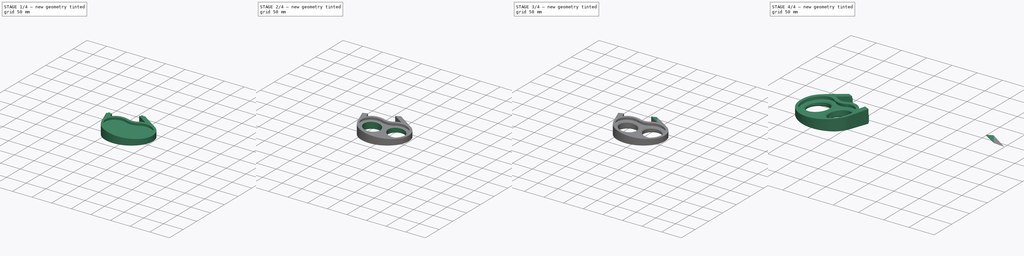
[diagram: build sequence overview — one tinted view per stage of 4, left to right]
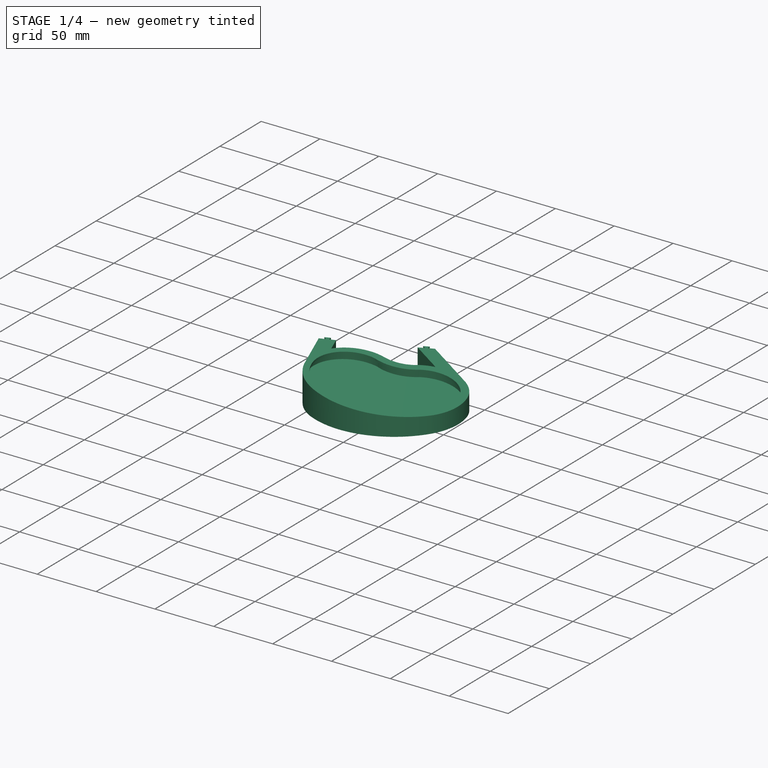
[diagram: stage 1 of 4 — iso view after this stage's code; geometry added in this stage tinted green]
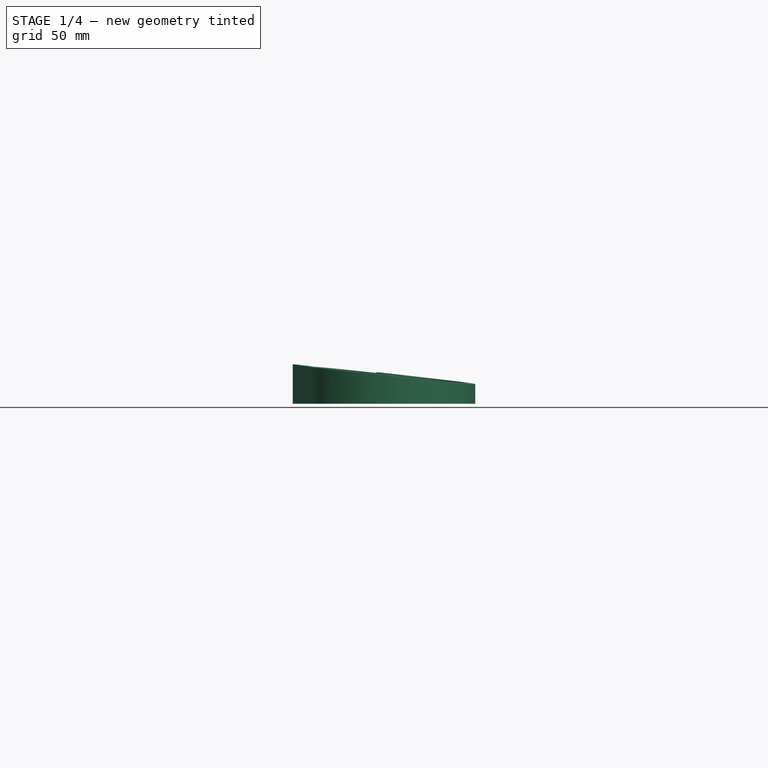
[diagram: stage 1 of 4 — front view after this stage's code; geometry added in this stage tinted green]
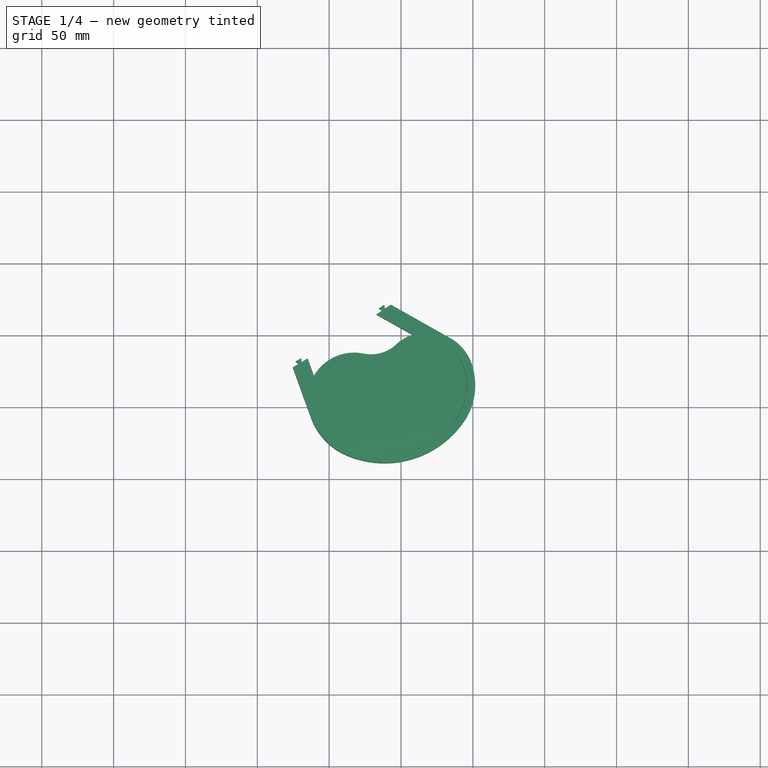
[diagram: stage 1 of 4 — top view after this stage's code; geometry added in this stage tinted green]
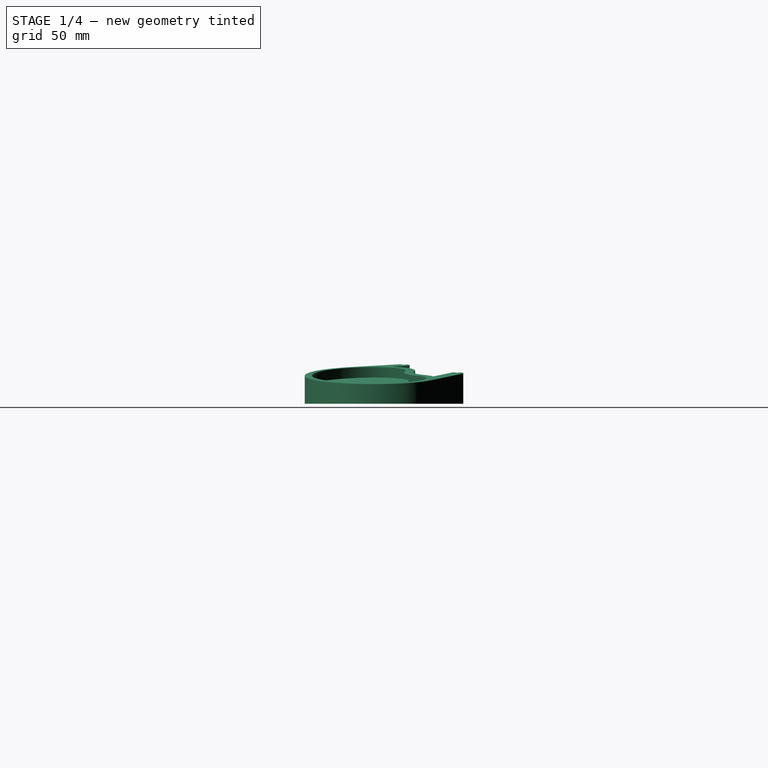
[diagram: stage 1 of 4 — right view after this stage's code; geometry added in this stage tinted green]
FCSTD DOCUMENT  (FreeCAD 1.0R39285 (Git))
Label: cinque-1.0-wrist-rest
License: All rights reserved
LicenseURL: https://en.wikipedia.org/wiki/All_rights_reserved
objects: Sketcher::SketchObject×7, PartDesign::Point×5, PartDesign::Pocket×4, Part::FeaturePython×3, PartDesign::Plane×2, PartDesign::Chamfer×2, PartDesign::Pad×1, PartDesign::Body×1, App::DocumentObjectGroup×1, Part::Fillet×1, Part::Mirroring×1
note: 48 computed .brp shape members not serialized (recipe doc carries the construction recipe); baked Part::Feature solids carry a one-line shape summary decoded from their .brp

FEATURE [Sketcher::SketchObject] Sketch021
  ArcFitTolerance = 1e-06
  AttachmentOffset = pos=(1.3,43.29,0) rot=(0,0,1;0.191986rad)
  AttachmentSupport = -> [XY_Plane]
  FullyConstrained = true
  MakeInternals = false
  MapMode = 5
  Placement = pos=(1.3,43.29,0) rot=(0,0,1;0.191986rad)
  sketch-geometry (35):
    g0: LineSegment StartX=16.2394 StartY=15.4165 StartZ=0 EndX=17.8054 EndY=9.6763 EndZ=0
    g1: LineSegment StartX=17.8054 StartY=9.6763 StartZ=0 EndX=19.8883 EndY=11.5402 EndZ=0
    g2: LineSegment StartX=19.8883 StartY=11.5402 StartZ=0 EndX=21.2306 EndY=6.62006 EndZ=0
    g3: LineSegment StartX=21.2306 StartY=6.62006 StartZ=0 EndX=18.4898 EndY=7.16798 EndZ=0
    g4: LineSegment StartX=18.4898 StartY=7.16798 StartZ=0 EndX=32.8352 EndY=-45.4133 EndZ=0
    g5: LineSegment StartX=32.8352 StartY=-45.4133 StartZ=0 EndX=34.9181 EndY=-43.5494 EndZ=0
    g6: LineSegment StartX=34.9181 StartY=-43.5494 StartZ=0 EndX=36.2604 EndY=-48.4695 EndZ=0
    g7: LineSegment StartX=36.2604 StartY=-48.4695 StartZ=0 EndX=33.5196 EndY=-47.9216 EndZ=0
    g8: LineSegment StartX=33.5196 StartY=-47.9216 StartZ=0 EndX=35.0856 EndY=-53.6618 EndZ=0
    g9: LineSegment StartX=35.0856 StartY=-53.6618 StartZ=0 EndX=29.0135 EndY=-61.5422 EndZ=0
    g10: LineSegment StartX=29.0135 StartY=-61.5422 StartZ=0 EndX=32.9844 EndY=-72.3026 EndZ=0
    g11: LineSegment StartX=32.9844 StartY=-72.3026 StartZ=0 EndX=34.8971 EndY=-70.2644 EndZ=0
    g12: LineSegment StartX=34.8971 StartY=-70.2644 StartZ=0 EndX=36.6627 EndY=-75.049 EndZ=0
    g13: LineSegment StartX=36.6627 StartY=-75.049 StartZ=0 EndX=33.8846 EndY=-74.7418 EndZ=0
    g14: LineSegment StartX=33.8846 StartY=-74.7418 StartZ=0 EndX=38.0217 EndY=-85.9528 EndZ=0
    g15: LineSegment StartX=38.0217 StartY=-85.9528 StartZ=0 EndX=63.9413 EndY=-76.6823 EndZ=0
    g16: LineSegment StartX=63.9413 StartY=-76.6823 StartZ=0 EndX=61.9224 EndY=-74.7493 EndZ=0
    g17: LineSegment StartX=61.9224 StartY=-74.7493 StartZ=0 EndX=66.7245 EndY=-73.0317 EndZ=0
    g18: LineSegment StartX=66.7245 StartY=-73.0317 StartZ=0 EndX=66.3895 EndY=-75.8066 EndZ=0
    g19: LineSegment StartX=66.3895 StartY=-75.8066 StartZ=0 EndX=92.3091 EndY=-66.5361 EndZ=0
    g20: LineSegment StartX=92.3091 StartY=-66.5361 StartZ=0 EndX=128.014 EndY=-51.2943 EndZ=0
    g21: LineSegment StartX=128.014 StartY=-51.2943 StartZ=0 EndX=125.883 EndY=-49.4858 EndZ=0
    g22: LineSegment StartX=125.883 StartY=-49.4858 StartZ=0 EndX=130.574 EndY=-47.4836 EndZ=0
    g23: LineSegment StartX=130.574 StartY=-47.4836 StartZ=0 EndX=130.406 EndY=-50.2736 EndZ=0
    g24: LineSegment StartX=130.406 StartY=-50.2736 StartZ=0 EndX=166.111 EndY=-35.0318 EndZ=0
    g25: LineSegment StartX=167.763 StartY=-32.1537 StartZ=0 EndX=162.807 EndY=21.9215 EndZ=0
    g26: LineSegment StartX=161.439 StartY=24.121 StartZ=0 EndX=141.847 EndY=35.9891 EndZ=0
    g27: LineSegment StartX=141.847 StartY=35.9891 StartZ=0 EndX=115.751 EndY=43.3614 EndZ=0
    g28: LineSegment StartX=115.751 StartY=43.3614 StartZ=0 EndX=95.7425 EndY=47.1481 EndZ=0
    g29: LineSegment StartX=95.7425 StartY=47.1481 StartZ=0 EndX=76.8905 EndY=43.9433 EndZ=0
    g30: LineSegment StartX=76.8905 StartY=43.9433 StartZ=0 EndX=36.0729 EndY=24.9987 EndZ=0
    g31: LineSegment StartX=36.0729 StartY=24.9987 StartZ=0 EndX=31.3759 EndY=19.3864 EndZ=0
    g32: LineSegment StartX=31.3759 StartY=19.3864 StartZ=0 EndX=16.2394 EndY=15.4165 EndZ=0
    g33: ArcOfCircle CenterX=159.666 CenterY=21.4937 CenterZ=0 NormalX=0 NormalY=0 NormalZ=1 AngleXU=0 Radius=3.17 StartAngle=0.135278 EndAngle=0.976936
    g34: ArcOfCircle CenterX=164.363 CenterY=-32.1153 CenterZ=0 NormalX=0 NormalY=0 NormalZ=1 AngleXU=0 Radius=3.4 StartAngle=5.25178 EndAngle=6.27191
  constraints (72):
    c: Coincident(g-38,g0)
    c: Coincident(g0,g-4)
    c: Coincident(g0,g1)
    c: Coincident(g1,g-5)
    c: Coincident(g1,g2)
    c: Coincident(g2,g-6)
    c: Coincident(g2,g3)
    c: Coincident(g3,g-7)
    c: Coincident(g3,g4)
    c: Coincident(g4,g-8)
    c: Coincident(g4,g5)
    c: Coincident(g5,g-9)
    c: Coincident(g5,g6)
    c: Coincident(g6,g-10)
    c: Coincident(g6,g7)
    c: Coincident(g7,g-11)
    c: Coincident(g7,g8)
    c: Coincident(g8,g-12)
    c: Coincident(g8,g9)
    c: Coincident(g9,g-13)
    c: Coincident(g9,g10)
    c: Coincident(g10,g-13)
    c: Coincident(g10,g11)
    c: Coincident(g11,g-14)
    c: Coincident(g11,g12)
    c: Coincident(g12,g-16)
    c: Coincident(g12,g13)
    c: Coincident(g13,g-17)
    c: Coincident(g13,g14)
    c: Coincident(g14,g-18)
    c: Coincident(g14,g15)
    c: Coincident(g15,g-19)
    c: Coincident(g15,g16)
    c: Coincident(g16,g-20)
    c: Coincident(g16,g17)
    c: Coincident(g17,g-21)
    c: Coincident(g17,g18)
    c: Coincident(g18,g-22)
    c: Coincident(g18,g19)
    c: Coincident(g19,g-23)
    c: Coincident(g19,g20)
    c: Coincident(g20,g-24)
    c: Coincident(g20,g21)
    c: Coincident(g21,g-25)
    c: Coincident(g21,g22)
    c: Coincident(g22,g-26)
    c: Coincident(g22,g23)
    c: Coincident(g23,g-27)
    c: Coincident(g23,g24)
    c: Coincident(g24,g-28)
    c: Coincident(g-29,g25)
    c: Coincident(g25,g-31)
    c: Coincident(g-32,g26)
    c: Coincident(g26,g-33)
    c: Coincident(g26,g27)
    c: Coincident(g27,g-34)
    c: Coincident(g27,g28)
    c: Coincident(g28,g-35)
    c: Coincident(g28,g29)
    c: Coincident(g29,g-36)
    c: Coincident(g29,g30)
    c: Coincident(g30,g-37)
    c: Coincident(g30,g31)
    c: Coincident(g31,g-38)
    c: Coincident(g31,g32)
    c: Coincident(g32,g0)
    c: Coincident(g33,g-31)
    c: Coincident(g33,g26)
    c: Coincident(g34,g-28)
    c: Coincident(g34,g25)
    c: Distance(g25,g34) = 3.32
    c: Distance(g26,g33) = 2.59
FEATURE [Sketcher::SketchObject] Sketch026
  ArcFitTolerance = 1e-06
  AttachmentSupport = -> [XY_Plane]
  ExternalGeometry = -> [Sketch021]
  FullyConstrained = true
  MakeInternals = false
  MapMode = 5
  sketch-geometry (21):
    g0: ArcOfCircle CenterX=117.459 CenterY=-44.6002 CenterZ=0 NormalX=0 NormalY=0 NormalZ=1 AngleXU=0 Radius=32.5 StartAngle=1.37342 EndAngle=2.6105
    g1: ArcOfCircle CenterX=130.068 CenterY=-41.7002 CenterZ=0 NormalX=0 NormalY=0 NormalZ=1 AngleXU=0 Radius=45.5 StartAngle=3.46173 EndAngle=4.24917
    g2: ArcOfCircle CenterX=138.599 CenterY=-21.9402 CenterZ=0 NormalX=0 NormalY=0 NormalZ=1 AngleXU=0 Radius=67 StartAngle=4.26705 EndAngle=5.72294
    g3: ArcOfCircle CenterX=156.152 CenterY=-34.4502 CenterZ=0 NormalX=0 NormalY=0 NormalZ=1 AngleXU=0 Radius=45.5 StartAngle=5.75084 EndAngle=6.57028
    g4: ArcOfCircle CenterX=168.486 CenterY=-30.3015 CenterZ=0 NormalX=0 NormalY=0 NormalZ=1 AngleXU=0 Radius=32.5 StartAngle=0.27213 EndAngle=1.05838
    g5: ArcOfCircle CenterX=129.05 CenterY=12.7398 CenterZ=0 NormalX=0 NormalY=0 NormalZ=1 AngleXU=0 Radius=26 StartAngle=4.51032 EndAngle=5.52701
    g6: LineSegment StartX=74.6834 StartY=-22.3392 StartZ=0 EndX=78.9835 EndY=-19.788 EndZ=0
    g7: LineSegment StartX=78.9835 StartY=-19.788 StartZ=0 EndX=76.6328 EndY=-18.2757 EndZ=0
    g8: LineSegment StartX=76.6328 StartY=-18.2757 StartZ=0 EndX=80.6011 EndY=-15.9213 EndZ=0
    g9: LineSegment StartX=80.6011 StartY=-15.9213 StartZ=0 EndX=80.7975 EndY=-18.7117 EndZ=0
    g10: LineSegment StartX=80.7975 StartY=-18.7117 StartZ=0 EndX=85.0976 EndY=-16.1605 EndZ=0
    g11: LineSegment StartX=132.895 StartY=14.5719 StartZ=0 EndX=137.035 EndY=17.3763 EndZ=0
    g12: LineSegment StartX=137.035 StartY=17.3763 StartZ=0 EndX=134.598 EndY=18.745 EndZ=0
    g13: LineSegment StartX=134.598 StartY=18.745 StartZ=0 EndX=138.418 EndY=21.3332 EndZ=0
    g14: LineSegment StartX=138.418 StartY=21.3332 StartZ=0 EndX=138.786 EndY=18.5624 EndZ=0
    g15: LineSegment StartX=138.786 StartY=18.5624 StartZ=0 EndX=142.925 EndY=21.3667 EndZ=0
    g16: LineSegment StartX=142.925 StartY=21.3667 StartZ=0 EndX=184.42 EndY=-1.97573 EndZ=0
    g17: LineSegment StartX=132.895 StartY=14.5719 StartZ=0 EndX=157.987 EndY=0.45613 EndZ=0
    g18: LineSegment StartX=74.6834 StartY=-22.3392 StartZ=0 EndX=86.8801 EndY=-56.0188 EndZ=0
    g19: LineSegment StartX=85.0976 StartY=-16.1605 StartZ=0 EndX=89.4358 EndY=-28.1397 EndZ=0
    g20: ArcOfCircle CenterX=168.486 CenterY=-30.3015 CenterZ=0 NormalX=0 NormalY=0 NormalZ=1 AngleXU=0 Radius=32.5 StartAngle=1.89973 EndAngle=2.25419
  constraints (69):
    c: Coincident(g0,g5)
    c: Coincident(g3,g2)
    c: Coincident(g4,g3)
    c: Coincident(g20,g5)
    c: Radius(g0) = 32.5
    c: Radius(g4) = 32.5
    c: Radius(g5) = 26
    c: Radius(g3) = 45.5
    c: Radius(g1) = 45.5
    c: Radius(g2) = 67
    c: Coincident(g6,g7)
    c: Coincident(g7,g8)
    c: Coincident(g8,g9)
    c: Coincident(g9,g10)
    c: Distance(g6,g6) = 5
    c: Distance(g10,g10) = 5
    c: Coincident(g11,g12)
    c: Coincident(g12,g13)
    c: Coincident(g13,g14)
    c: Coincident(g14,g15)
    c: Distance(g15,g15) = 5
    c: Distance(g11,g11) = 5
    c: Coincident(g15,g16)
    c: Coincident(g17,g11)
    c: PointOnObject(g17,g20)
    c: Coincident(g18,g6)
    c: Coincident(g19,g10)
    c: Parallel(g18,g19)
    c: Coincident(g0,g19)
    c: Equal(g4,g20)
    c: Tangent(g4,g16) = 1.5708
    c: PointOnObject(g20,g17)
    c: Coincident(g4,g20)
    c: Coincident(g1,g18)
    c: Distance(g15,g-12) = 0.15
    c: Distance(g-11,g14) = 0.15
    c: Distance(g13,g-10) = 0.15
    c: Distance(g-9,g12) = 0.15
    c: Distance(g11,g-8) = 0.15
    c: Distance(g-7,g10) = 0.15
    c: Distance(g-3,g9) = 0.15
    c: Distance(g-5,g8) = 0.15
    c: Distance(g7,g-4) = 0.15
    c: Distance(g6,g-6) = 0.15
    c: DistanceX(g-8,g2) = 33.99
    c: DistanceY(g2,g-8) = 17.53
    c: Distance(g0,g0) = 37.69
    c: Distance(g0,g5) = 25.31
    c: Distance(g17,g5) = 11.46
    c: Distance(g17,g17) = 28.79
    c: Distance(g16,g16) = 47.61
    c: Distance(g18,g18) = 35.82
    c: Distance(g4,g3) = 24.9
    c: Distance(g2,g3) = 36.25
    c: DistanceY(g2,g5) = 34.68
    c: DistanceY(g3,g2) = 12.51
    c: DistanceY(g1,g2) = 19.76
    c: DistanceY(g0,g2) = 22.66
    c: Parallel(g12,g-9)
    c: Parallel(g14,g-11)
    c: Parallel(g13,g-10)
    c: Parallel(g-8,g11)
    c: Parallel(g-12,g15)
    c: Parallel(g-6,g6)
    c: Parallel(g10,g-7)
    c: Parallel(g-5,g8)
    c: Parallel(g7,g-4)
    c: Coincident(g2,g1)
    c: Distance(g1,g1) = 34.91
FEATURE [PartDesign::Point] DatumPoint003
  AttacherType = Attacher::AttachEnginePoint
  AttachmentOffset = pos=(0,0,27.5) rot=(0,0,1;0rad)
  AttachmentSupport = -> [Sketch026]
  MapMode = 37
  Placement = pos=(74.6834,-22.3392,27.5) rot=(0,0,1;0rad)
FEATURE [PartDesign::Point] DatumPoint004
  AttacherType = Attacher::AttachEnginePoint
  AttachmentOffset = pos=(0,0,26.5) rot=(0,0,1;0rad)
  AttachmentSupport = -> [Sketch026]
  MapMode = 37
  Placement = pos=(85.0976,-16.1605,26.5) rot=(0,0,1;0rad)
FEATURE [PartDesign::Point] DatumPoint005
  AttacherType = Attacher::AttachEnginePoint
  AttachmentOffset = pos=(0,0,14) rot=(0,0,1;0rad)
  AttachmentSupport = -> [Sketch026]
  MapMode = 37
  Placement = pos=(195.356,-57.5439,14) rot=(0,0,1;0rad)
FEATURE [PartDesign::Plane] DatumPlane
  AttachmentSupport = -> [DatumPoint003,DatumPoint004,DatumPoint005]
  Length = 151.209
  MapMode = 13
  Placement = pos=(118.379,-32.0145,22.6667) rot=(-0.645357,0.762773,0.041124;3.21115rad)
  ResizeMode = 0
  Width = 268.6
FEATURE [PartDesign::Pad] Pad
  Direction = (0,0,1)
  Length = 30
  Length2 = 10
  Profile = -> Sketch026
  ReferenceAxis = -> Sketch026 [N_Axis]
  Refine = true
  Suppressed = false
  Type = 3
  UpToFace = -> DatumPlane
FEATURE [Sketcher::SketchObject] Sketch023
  ArcFitTolerance = 1e-06
  AttachmentOffset = pos=(141.1,-43.1,0) rot=(0,0,1;0.261799rad)
  AttachmentSupport = -> [Pad]
  FullyConstrained = true
  MakeInternals = false
  MapMode = 5
  Placement = pos=(144.085,-43.4601,19.7202) rot=(0.111656,0.36384,0.924745;0.283859rad)
  sketch-geometry (9):
    g0: ArcOfCircle CenterX=27 CenterY=5.1817 CenterZ=0 NormalX=0 NormalY=0 NormalZ=1 AngleXU=0 Radius=30 StartAngle=0 EndAngle=1.9642
    g1: ArcOfCircle CenterX=-27 CenterY=5.1817 CenterZ=0 NormalX=0 NormalY=0 NormalZ=1 AngleXU=0 Radius=30 StartAngle=1.17739 EndAngle=3.14159
    g2: ArcOfCircle CenterX=13.744 CenterY=5.1817 CenterZ=0 NormalX=0 NormalY=0 NormalZ=1 AngleXU=0 Radius=43.256 StartAngle=5.45518 EndAngle=6.28319
    g3: LineSegment [constr] StartX=-62.5 StartY=5.1817 StartZ=0 EndX=62.5 EndY=5.1817 EndZ=0
    g4: ArcOfCircle CenterX=-3.1e-15 CenterY=23.39 CenterZ=0 NormalX=0 NormalY=0 NormalZ=1 AngleXU=0 Radius=66 StartAngle=4.00281 EndAngle=5.42197
    g5: GeomPoint X=43 Y=-26.68 Z=0
    g6: ArcOfCircle CenterX=-13.5001 CenterY=5.28886 CenterZ=0 NormalX=0 NormalY=0 NormalZ=1 AngleXU=0 Radius=43.5 StartAngle=3.14406 EndAngle=3.96714
    g7: ArcOfCircle CenterX=-6e-16 CenterY=58.5756 CenterZ=0 NormalX=0 NormalY=0 NormalZ=1 AngleXU=0 Radius=30 StartAngle=4.16944 EndAngle=5.25534
    g8: GeomPoint X=15.5 Y=32.89 Z=0
  constraints (26):
    c: DistanceX(g1,g-1) = 27
    c: DistanceX(g3,g3) = 125
    c: Symmetric(g3,g3,g-2)
    c: PointOnObject(g1,g3)
    c: PointOnObject(g2,g3)
    c: Coincident(g1,g6)
    c: Coincident(g0,g2)
    c: Radius(g7) = 30
    c: DistanceX(g4,g-1) = 43
    c: DistanceY(g2,g-1) = 26.68
    c: Distance(g0,g-1) = 32.89
    c: PointOnObject(g1,g3)
    c: Radius(g4) = 66
    c: Radius(g6) = 43.5
    c: Coincident(g0,g7)
    c: Coincident(g8,g0)
    c: Coincident(g5,g2)
    c: Coincident(g7,g1)
    c: Coincident(g6,g4)
    c: Coincident(g4,g2)
    c: Symmetric(g1,g0,g-2)
    c: Symmetric(g4,g2,g-2)
    c: Distance(g1,g-2) = 15.5
    c: Radius(g1) = 30
    c: Symmetric(g1,g0,g-2)
    c: PointOnObject(g0,g3)
FEATURE [Sketcher::SketchObject] Sketch
  ArcFitTolerance = 1e-06
  AttachmentSupport = -> [Pad]
  ExternalGeometry = -> [Sketch023]
  FullyConstrained = true
  MakeInternals = false
  MapMode = 5
  Placement = pos=(3.7807,-0.634916,35.4503) rot=(0.16608,0.986073,0.00883;0.107727rad)
  sketch-geometry (6):
    g0: ArcOfCircle CenterX=113.679 CenterY=-45.083 CenterZ=0 NormalX=0 NormalY=0 NormalZ=1 AngleXU=0 Radius=27 StartAngle=1.44681 EndAngle=3.38787
    g1: ArcOfCircle CenterX=125.94 CenterY=13.4797 CenterZ=0 NormalX=0 NormalY=0 NormalZ=1 AngleXU=0 Radius=32.9988 StartAngle=4.43862 EndAngle=5.50622
    g2: ArcOfCircle CenterX=165.839 CenterY=-31.1067 CenterZ=0 NormalX=0 NormalY=0 NormalZ=1 AngleXU=0 Radius=26.9831 StartAngle=0.264567 EndAngle=2.22266
    g3: ArcOfCircle CenterX=153.035 CenterY=-34.5377 CenterZ=0 NormalX=0 NormalY=0 NormalZ=1 AngleXU=0 Radius=40.239 StartAngle=5.71488 EndAngle=6.54684
    g4: ArcOfCircle CenterX=126.691 CenterY=-41.4854 CenterZ=0 NormalX=0 NormalY=0 NormalZ=1 AngleXU=0 Radius=40.4978 StartAngle=3.39569 EndAngle=4.22119
    g5: ArcOfCircle CenterX=135.046 CenterY=-20.507 CenterZ=0 NormalX=0 NormalY=0 NormalZ=1 AngleXU=0 Radius=62.9877 StartAngle=4.26133 EndAngle=5.68084
  constraints (18):
    c: Radius(g0) = 27
    c: Coincident(g0,g-3)
    c: Coincident(g1,g-4)
    c: Coincident(g1,g0)
    c: Coincident(g2,g-5)
    c: Coincident(g2,g1)
    c: Coincident(g3,g-6)
    c: Coincident(g3,g2)
    c: Coincident(g4,g-8)
    c: Coincident(g4,g0)
    c: Coincident(g5,g-7)
    c: Coincident(g5,g4)
    c: Coincident(g5,g3)
    c: Distance(g0,g1) = 33.58
    c: Distance(g1,g2) = 44.79
    c: Distance(g0,g0) = 44.56
    c: Distance(g0,g4) = 32.49
    c: Distance(g3,g2) = 32.52
FEATURE [PartDesign::Pocket] Pocket
  BaseFeature = -> Pad
  Direction = (-0.10603,0.0178062,-0.994204)
  Length = 1.6
  Length2 = 5
  Profile = -> Sketch
  ReferenceAxis = -> Sketch [N_Axis]
  Refine = true
  Suppressed = false
  Type = 0
FEATURE [Sketcher::SketchObject] Sketch027
  ArcFitTolerance = 1e-06
  AttachmentSupport = -> [Pocket]
  ExternalGeometry = -> [Sketch023]
  FullyConstrained = true
  MakeInternals = false
  MapMode = 5
  Placement = pos=(3.61106,-0.606426,33.8596) rot=(0.16608,0.986073,0.00883;0.107727rad)
  sketch-geometry (6):
    g0: ArcOfCircle CenterX=125.94 CenterY=13.4797 CenterZ=0 NormalX=0 NormalY=0 NormalZ=1 AngleXU=0 Radius=30 StartAngle=4.43124 EndAngle=5.51714
    g1: ArcOfCircle CenterX=165.839 CenterY=-31.1067 CenterZ=0 NormalX=0 NormalY=0 NormalZ=1 AngleXU=0 Radius=30 StartAngle=0.261799 EndAngle=2.226
    g2: ArcOfCircle CenterX=113.679 CenterY=-45.083 CenterZ=0 NormalX=0 NormalY=0 NormalZ=1 AngleXU=0 Radius=30 StartAngle=1.43919 EndAngle=3.40339
    g3: ArcOfCircle CenterX=126.691 CenterY=-41.4854 CenterZ=0 NormalX=0 NormalY=0 NormalZ=1 AngleXU=0 Radius=43.5 StartAngle=3.40586 EndAngle=4.22894
    g4: ArcOfCircle CenterX=153.035 CenterY=-34.5377 CenterZ=0 NormalX=0 NormalY=0 NormalZ=1 AngleXU=0 Radius=43.256 StartAngle=5.71698 EndAngle=6.54498
    g5: ArcOfCircle CenterX=135.046 CenterY=-20.507 CenterZ=0 NormalX=0 NormalY=0 NormalZ=1 AngleXU=0 Radius=66 StartAngle=4.26461 EndAngle=5.68377
  constraints (16):
    c: Coincident(g4,g1)
    c: Coincident(g1,g0)
    c: Coincident(g0,g2)
    c: Coincident(g0,g-4)
    c: Coincident(g3,g2)
    c: Coincident(g2,g-3)
    c: Coincident(g3,g5)
    c: Coincident(g3,g-7)
    c: Coincident(g5,g4)
    c: Coincident(g-6,g5)
    c: Coincident(g4,g-8)
    c: Coincident(g1,g-5)
    c: Coincident(g-7,g2)
    c: Coincident(g-8,g1)
    c: Distance(g0,g0) = 31
    c: Distance(g3,g4) = 86
FEATURE [PartDesign::Pocket] Pocket001
  BaseFeature = -> Pocket
  Direction = (-0.10603,0.0178062,-0.994204)
  Length = 6
  Length2 = 5
  Profile = -> Sketch027
  ReferenceAxis = -> Sketch027 [N_Axis]
  Refine = true
  Suppressed = false
  Type = 0
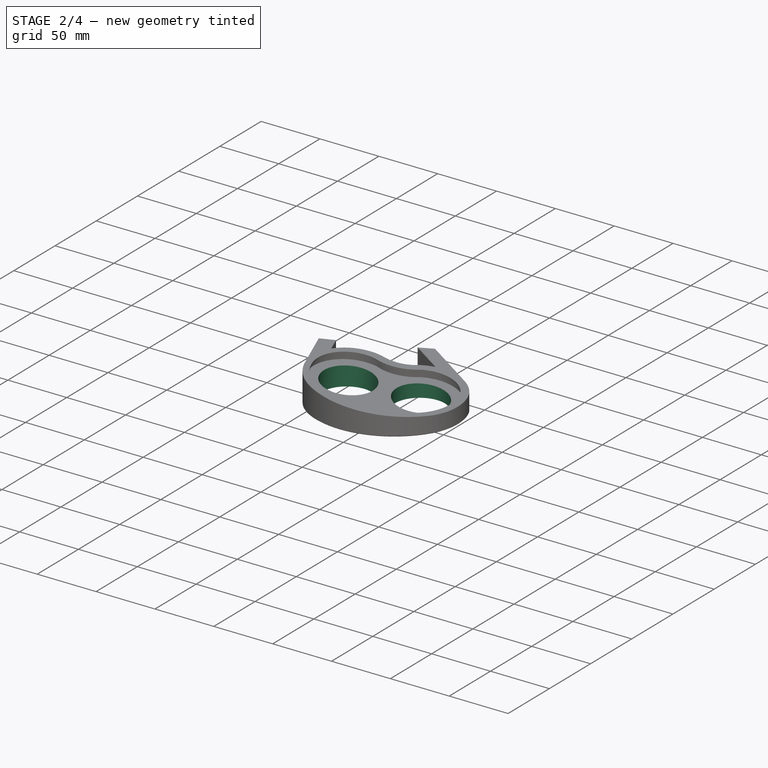
[diagram: stage 2 of 4 — iso view after this stage's code; geometry added in this stage tinted green]
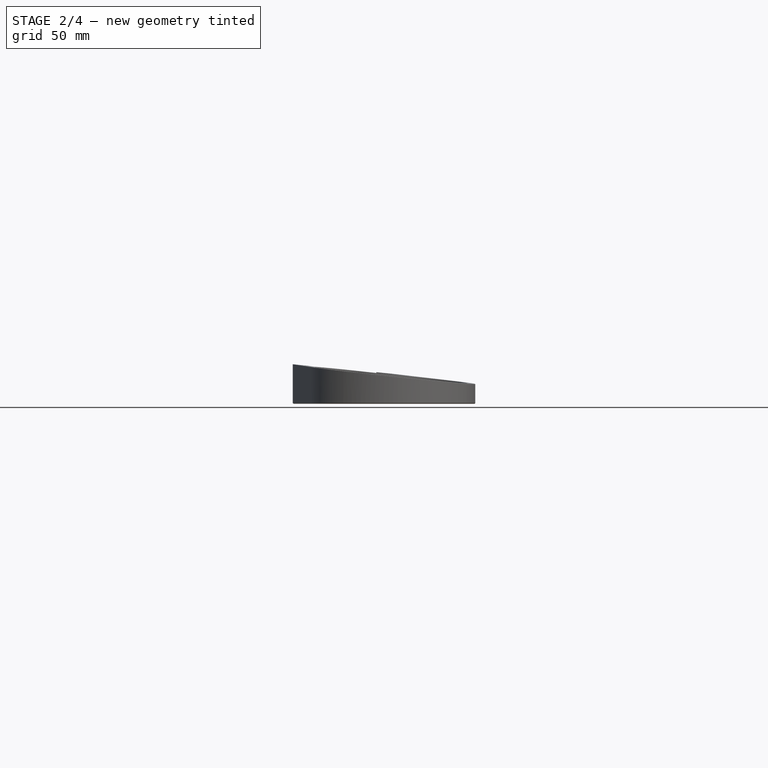
[diagram: stage 2 of 4 — front view after this stage's code; geometry added in this stage tinted green]
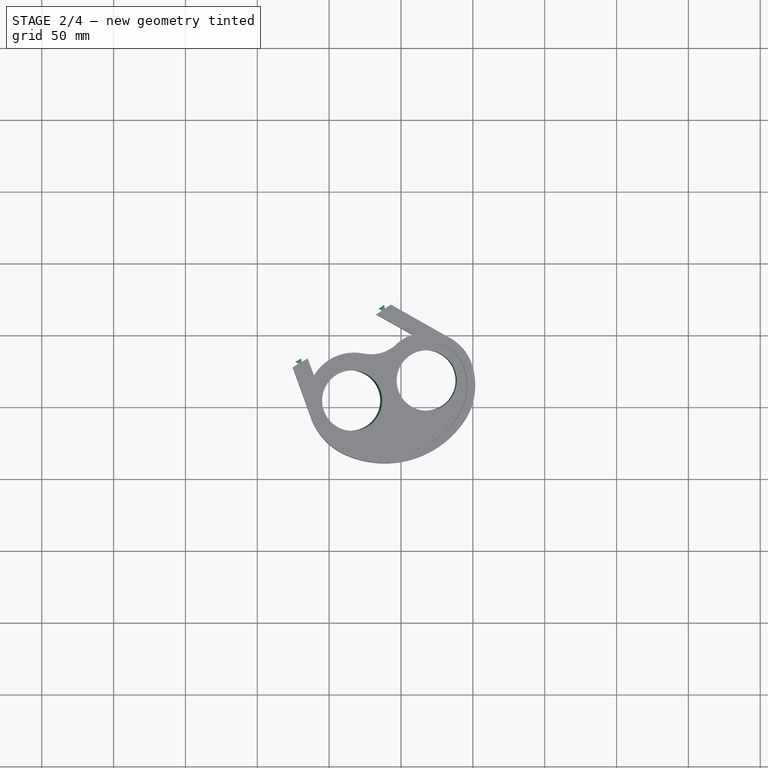
[diagram: stage 2 of 4 — top view after this stage's code; geometry added in this stage tinted green]
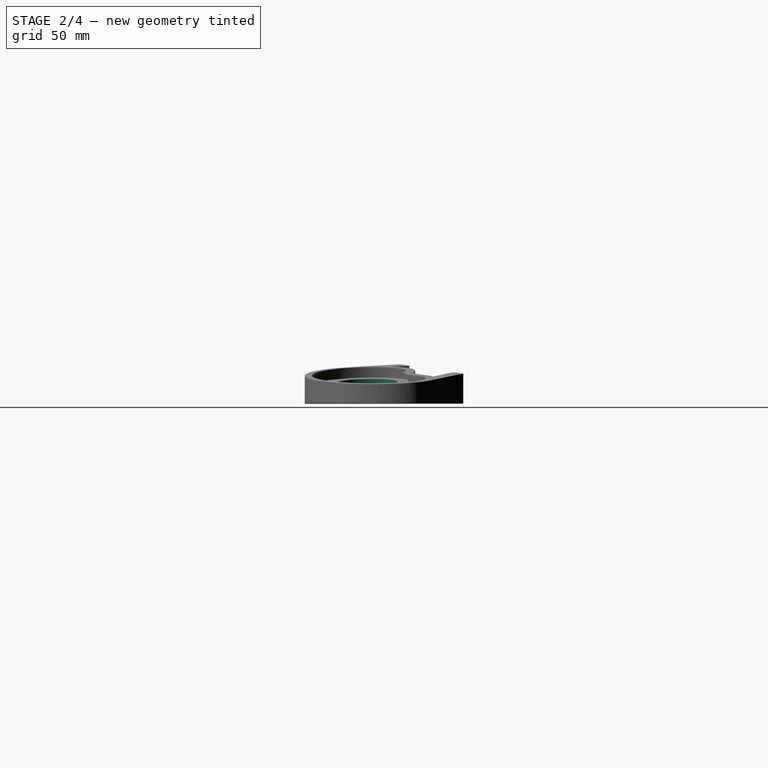
[diagram: stage 2 of 4 — right view after this stage's code; geometry added in this stage tinted green]
FEATURE [Sketcher::SketchObject] Sketch028
  ArcFitTolerance = 1e-06
  AttachmentOffset = pos=(0,0,-13.75) rot=(0,0,1;0rad)
  AttachmentSupport = -> [Pocket001]
  ExternalGeometry = -> [Pocket001]
  FullyConstrained = true
  MakeInternals = false
  MapMode = 5
  Placement = pos=(0,0,13.75) rot=(1,0,0;3.14159rad)
  sketch-geometry (8):
    g0: LineSegment StartX=137.035 StartY=-17.3763 StartZ=0 EndX=138.786 EndY=-18.5624 EndZ=0
    g1: LineSegment StartX=138.786 StartY=-18.5624 StartZ=0 EndX=138.418 EndY=-21.3332 EndZ=0
    g2: LineSegment StartX=138.418 StartY=-21.3332 StartZ=0 EndX=134.598 EndY=-18.745 EndZ=0
    g3: LineSegment StartX=134.598 StartY=-18.745 StartZ=0 EndX=137.035 EndY=-17.3763 EndZ=0
    g4: LineSegment StartX=78.9835 StartY=19.788 StartZ=0 EndX=80.7975 EndY=18.7117 EndZ=0
    g5: LineSegment StartX=80.7975 StartY=18.7117 StartZ=0 EndX=80.6011 EndY=15.9213 EndZ=0
    g6: LineSegment StartX=80.6011 StartY=15.9213 StartZ=0 EndX=76.6328 EndY=18.2757 EndZ=0
    g7: LineSegment StartX=76.6328 StartY=18.2757 StartZ=0 EndX=78.9835 EndY=19.788 EndZ=0
  constraints (16):
    c: Coincident(g-5,g0)
    c: Coincident(g0,g-6)
    c: Coincident(g0,g1)
    c: Coincident(g1,g-6)
    c: Coincident(g1,g2)
    c: Coincident(g2,g-5)
    c: Coincident(g2,g3)
    c: Coincident(g3,g0)
    c: Coincident(g-3,g4)
    c: Coincident(g4,g-4)
    c: Coincident(g4,g5)
    c: Coincident(g5,g-4)
    c: Coincident(g5,g6)
    c: Coincident(g6,g-3)
    c: Coincident(g6,g7)
    c: Coincident(g7,g4)
FEATURE [PartDesign::Pocket] Pocket002
  BaseFeature = -> Pocket001
  Direction = (0,0,1)
  Length = 5
  Length2 = 5
  Profile = -> Sketch028
  ReferenceAxis = -> Sketch028 [N_Axis]
  Refine = true
  Suppressed = false
  Type = 1
FEATURE [PartDesign::Chamfer] Chamfer
  Angle = 45
  Base = -> Pocket002 [Edge20,Edge21,Edge22,Edge23,Edge24,Edge9,Edge10,Edge11,Edge12,Edge13,Edge14,Edge15,Edge16,Edge17,Edge18,Edge19,Edge1,Edge8]
  BaseFeature = -> Pocket002
  ChamferType = 0
  FlipDirection = false
  Refine = true
  Size = 0.5
  Size2 = 1
  SupportTransform = false
  Suppressed = false
  UseAllEdges = false
FEATURE [Sketcher::SketchObject] Sketch029
  ArcFitTolerance = 1e-06
  AttachmentSupport = -> [Chamfer]
  ExternalGeometry = -> [Chamfer]
  FullyConstrained = true
  MakeInternals = false
  MapMode = 5
  Placement = pos=(2.97488,-0.499589,27.8944) rot=(0.16608,0.986073,0.00883;0.107727rad)
  sketch-geometry (2):
    g0: Circle CenterX=113.679 CenterY=-45.083 CenterZ=0 NormalX=0 NormalY=0 NormalZ=1 AngleXU=0 Radius=21
    g1: Circle CenterX=165.839 CenterY=-31.1067 CenterZ=0 NormalX=0 NormalY=0 NormalZ=1 AngleXU=0 Radius=21
  constraints (4):
    c: Diameter(g0) = 42
    c: Coincident(g0,g-3)
    c: Diameter(g1) = 42
    c: Coincident(g1,g-4)
FEATURE [PartDesign::Pocket] Pocket003
  BaseFeature = -> Chamfer
  Direction = (-0.10603,0.0178062,-0.994204)
  Length = 5
  Length2 = 5
  Profile = -> Sketch029
  ReferenceAxis = -> Sketch029 [N_Axis]
  Refine = true
  Suppressed = false
  Type = 1
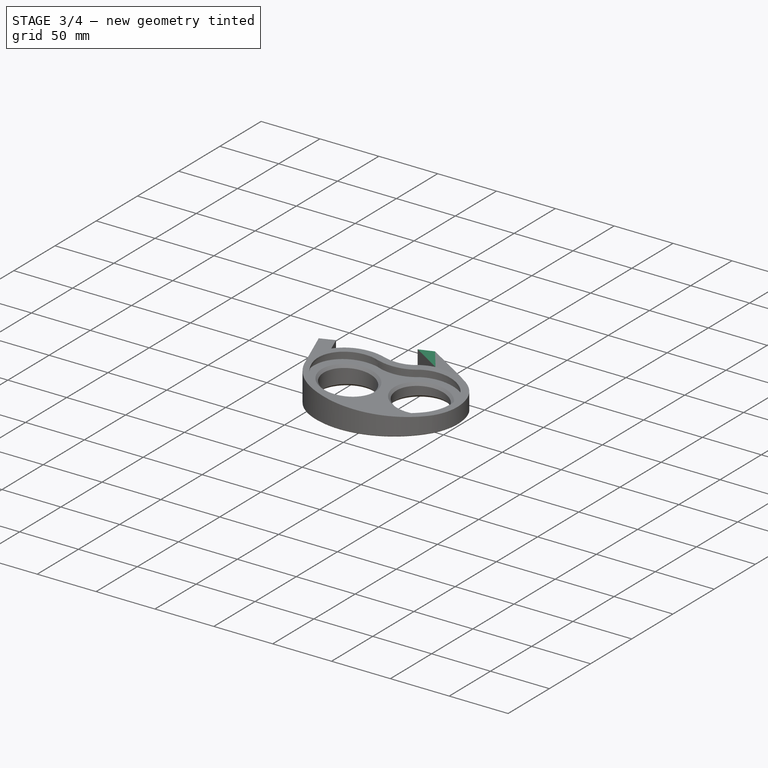
[diagram: stage 3 of 4 — iso view after this stage's code; geometry added in this stage tinted green]
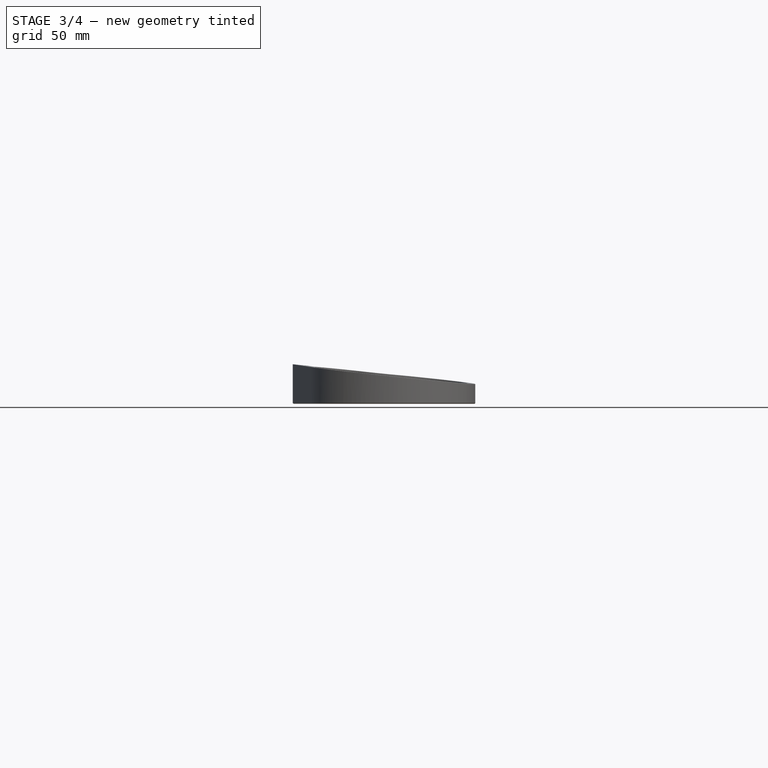
[diagram: stage 3 of 4 — front view after this stage's code; geometry added in this stage tinted green]
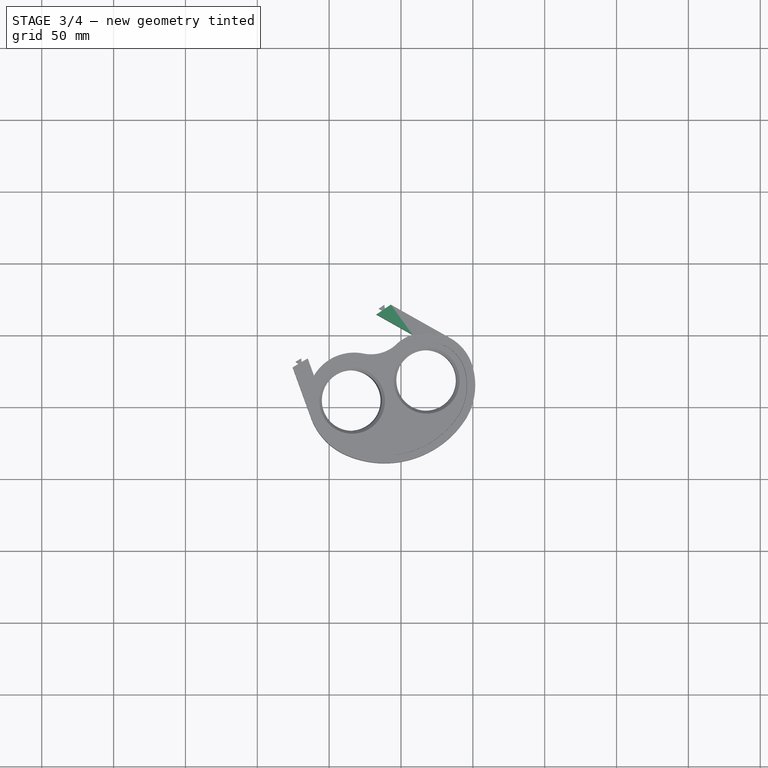
[diagram: stage 3 of 4 — top view after this stage's code; geometry added in this stage tinted green]
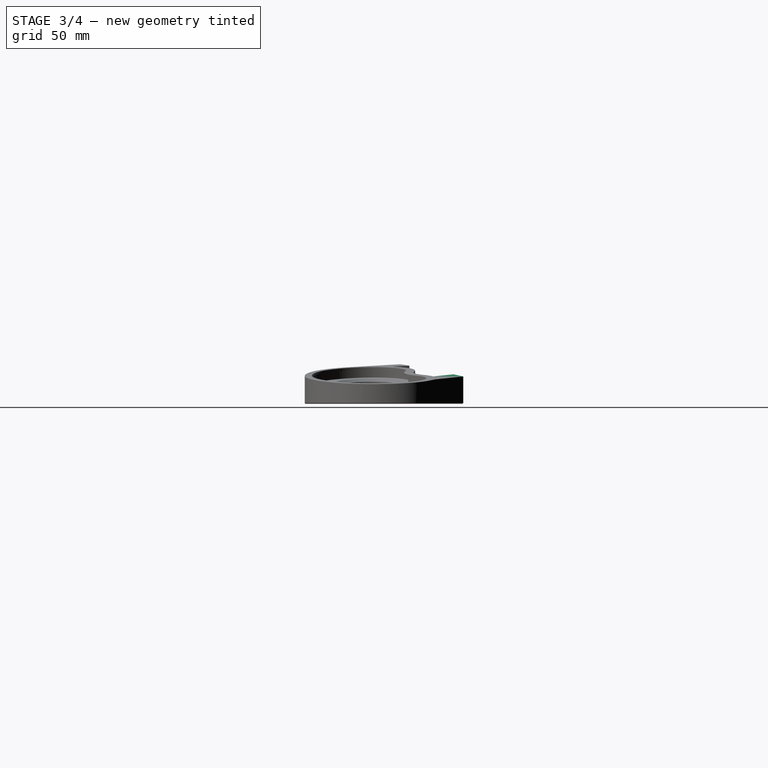
[diagram: stage 3 of 4 — right view after this stage's code; geometry added in this stage tinted green]
FEATURE [PartDesign::Chamfer] Chamfer001
  Angle = 45
  Base = -> Pocket003 [Edge56,Edge120,Edge118,Edge55]
  BaseFeature = -> Pocket003
  ChamferType = 0
  FlipDirection = false
  Refine = true
  Size = 2
  Size2 = 1
  SupportTransform = false
  Suppressed = false
  UseAllEdges = false
FEATURE [PartDesign::Point] DatumPoint
  AttacherType = Attacher::AttachEnginePoint
  AttachmentOffset = pos=(0,0,20.5) rot=(0,0,1;0rad)
  AttachmentSupport = -> [Sketch026]
  MapMode = 37
  Placement = pos=(132.895,14.5719,20.5) rot=(0,0,1;0rad)
FEATURE [PartDesign::Point] DatumPoint006
  AttacherType = Attacher::AttachEnginePoint
  AttachmentOffset = pos=(0,0,19) rot=(0,0,1;0rad)
  AttachmentSupport = -> [Sketch026]
  MapMode = 37
  Placement = pos=(142.925,21.3667,19) rot=(0,0,1;0rad)
FEATURE [PartDesign::Plane] DatumPlane001
  AttachmentSupport = -> [DatumPoint006,DatumPoint,Chamfer]
  Length = 239.414
  MapMode = 13
  Placement = pos=(144.603,12.1316,19.508) rot=(0.031236,0.061567,0.997614;2.20449rad)
  ResizeMode = 0
  Width = 273.974
FEATURE [PartDesign::Body] Body
  AllowCompound = false
  Group = -> [Sketch026,Sketch021,Sketch023,Pad,DatumPlane,DatumPoint003,DatumPoint004,DatumPoint005,Sketch,Pocket,Sketch027,Pocket001,Sketch028,Pocket002,Chamfer,Sketch029,Pocket003,Chamfer001,DatumPoint,DatumPoint006,DatumPlane001]
  Origin = -> Origin
  Tip = -> Chamfer001
FEATURE [Part::FeaturePython] Slice  # WARN: FeaturePython — macro-defined, semantics opaque (R4)
  Base = -> Chamfer001
  Mode = 1
  Tolerance = 0
  Tools = -> [DatumPlane001]
FEATURE [Part::FeaturePython] Slice_child0  label="Slice.0"  # WARN: FeaturePython — macro-defined, semantics opaque (R4)
  Base = -> Slice
  FilterType = 1
  Invert = false
  OverrideMaxVal = 0
  WindowFrom = 80
  WindowTo = 100
  items = 0
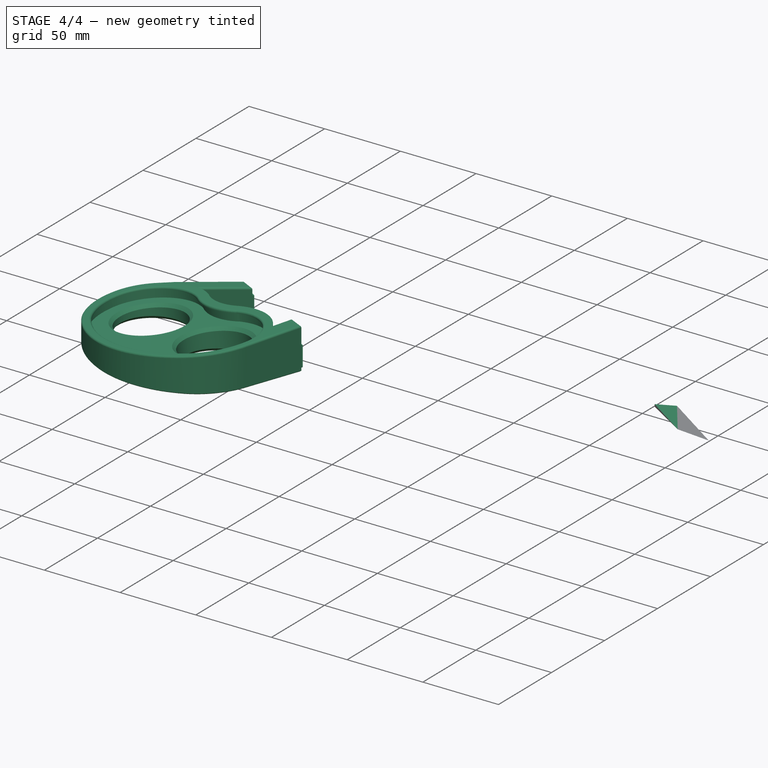
[diagram: stage 4 of 4 — iso view after this stage's code; geometry added in this stage tinted green]
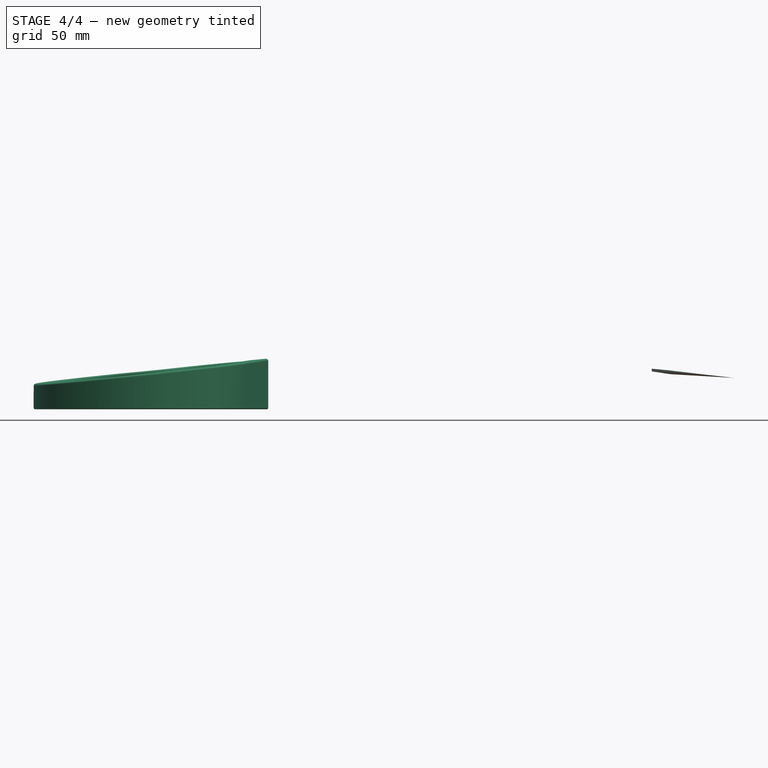
[diagram: stage 4 of 4 — front view after this stage's code; geometry added in this stage tinted green]
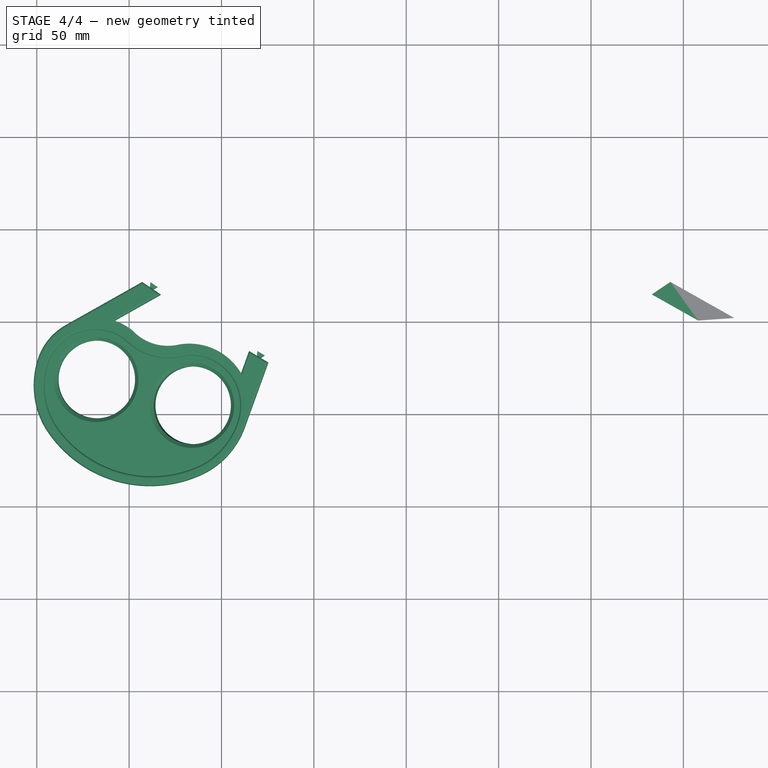
[diagram: stage 4 of 4 — top view after this stage's code; geometry added in this stage tinted green]
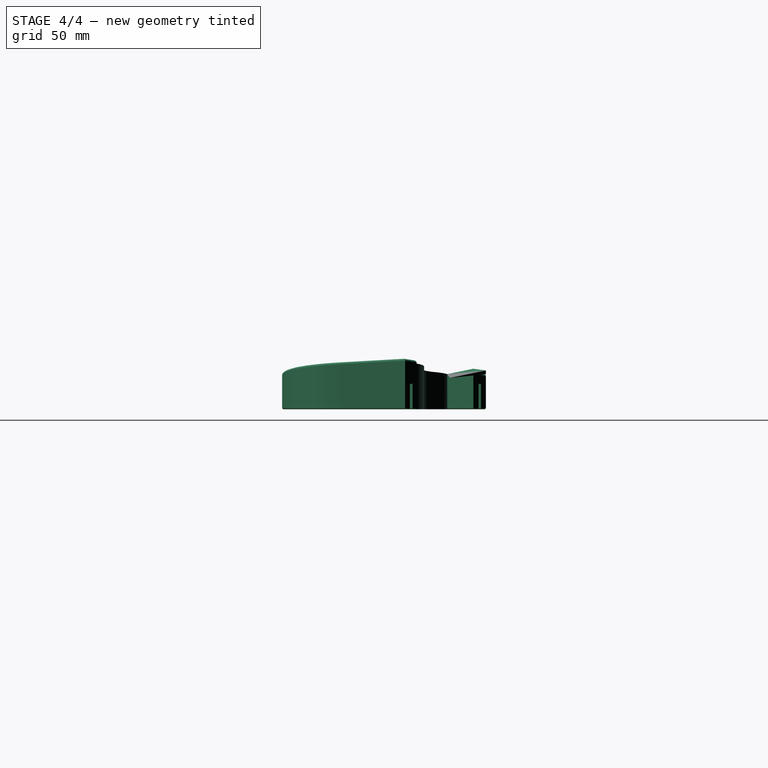
[diagram: stage 4 of 4 — right view after this stage's code; geometry added in this stage tinted green]
FEATURE [Part::FeaturePython] Slice_child1  label="Slice.1"  # WARN: FeaturePython — macro-defined, semantics opaque (R4)
  Base = -> Slice
  FilterType = 1
  Invert = false
  OverrideMaxVal = 0
  WindowFrom = 80
  WindowTo = 100
  items = 1
FEATURE [App::DocumentObjectGroup] GrExplode_Slice  label="Exploded Slice"
  Group = -> [Slice_child0,Slice_child1]
FEATURE [Part::Fillet] Fillet
  Base = -> Slice_child0
  EdgeLinks = -> Slice_child0 [Edge76,Edge78,Edge79,Edge80,Edge81,Edge82,Edge83,Edge84,Edge85,Edge87,Edge88,Edge89,Edge90,Edge91,Edge92,Edge97,Edge111]
  Edges = 17 edges r=1.2: [Edge76,Edge78,Edge79,Edge80,Edge81,Edge82,Edge83,Edge84,Edge85,Edge87,Edge88,Edge89,Edge90,Edge91,Edge92,Edge97,Edge111]
FEATURE [Part::Mirroring] Part__Mirroring  label="Fillet (Mirror #1)"
  Base = (0,0,0)
  Normal = (1,0,0)
  Source = -> Fillet
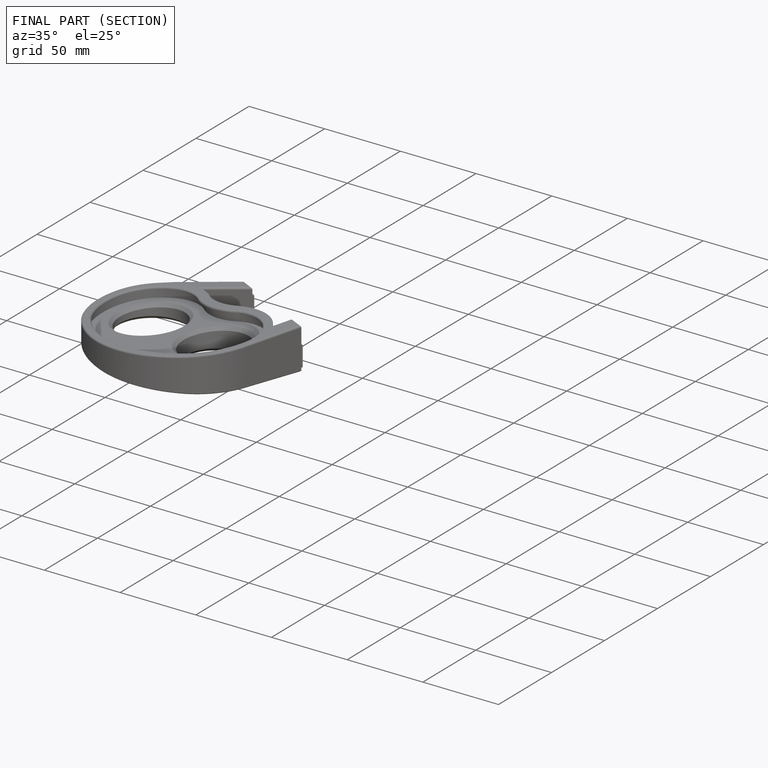
[diagram: finished part — half-section view (interior)]
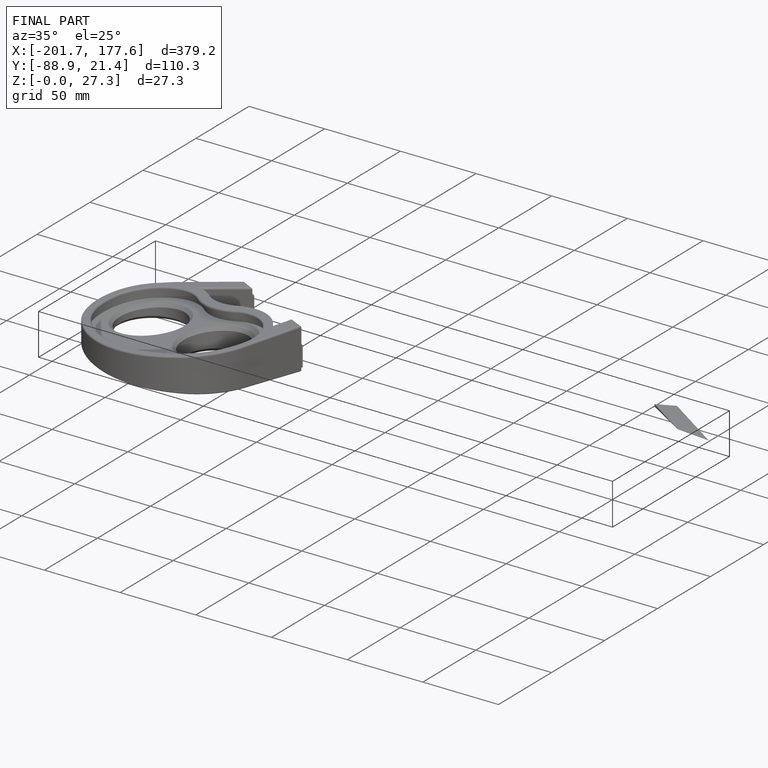
[diagram: finished part — iso view with bounding-box wireframe]
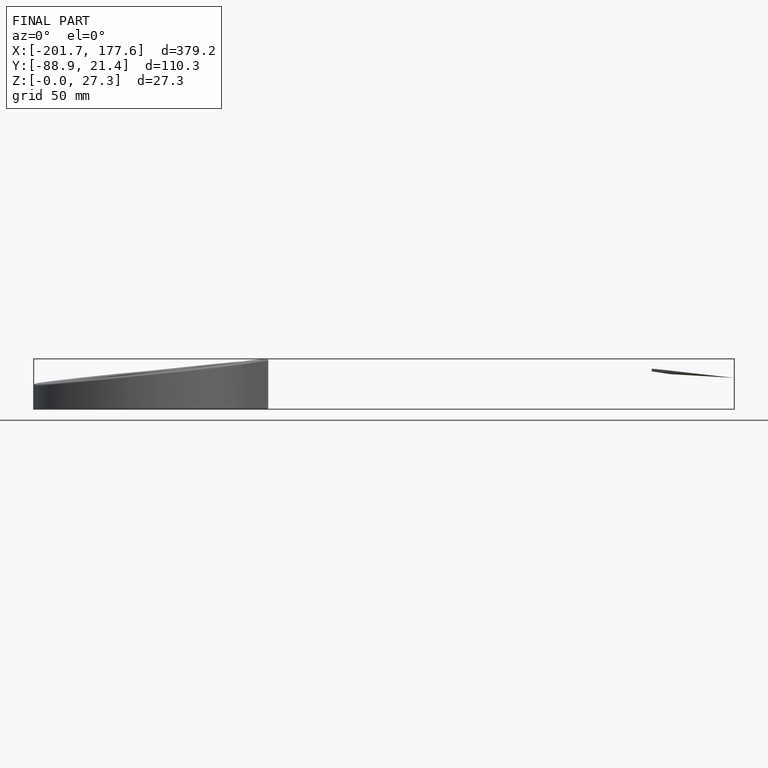
[diagram: finished part — front view with bounding-box wireframe]
